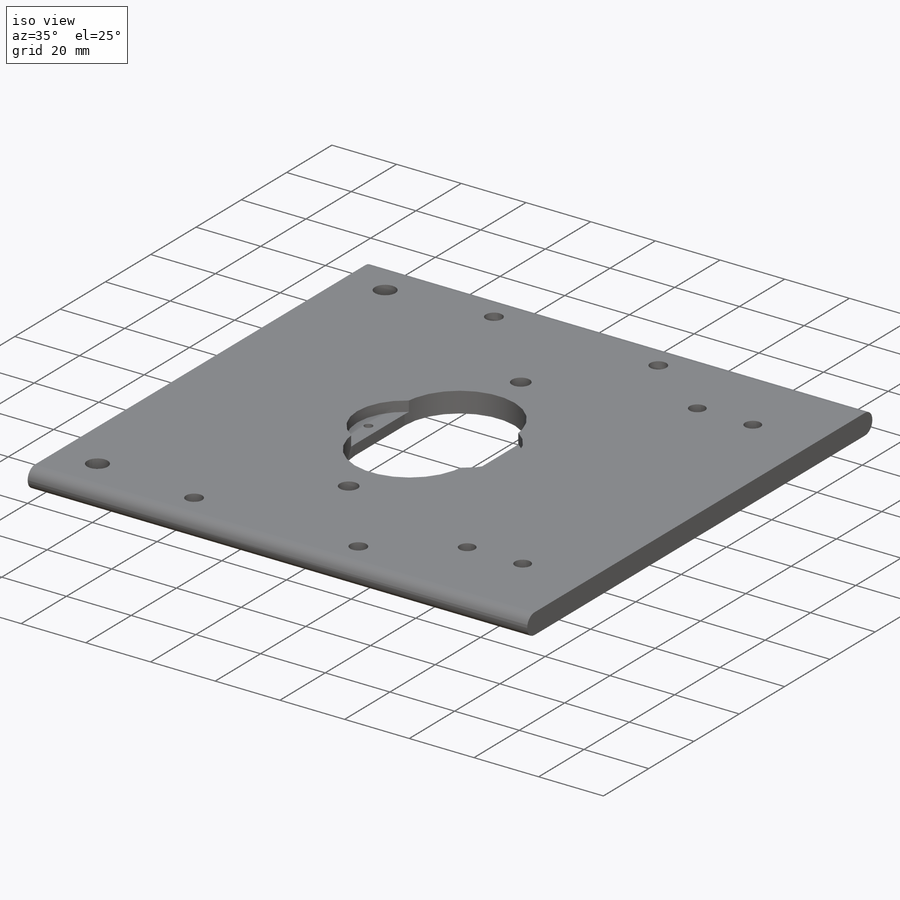
[diagram: iso view]
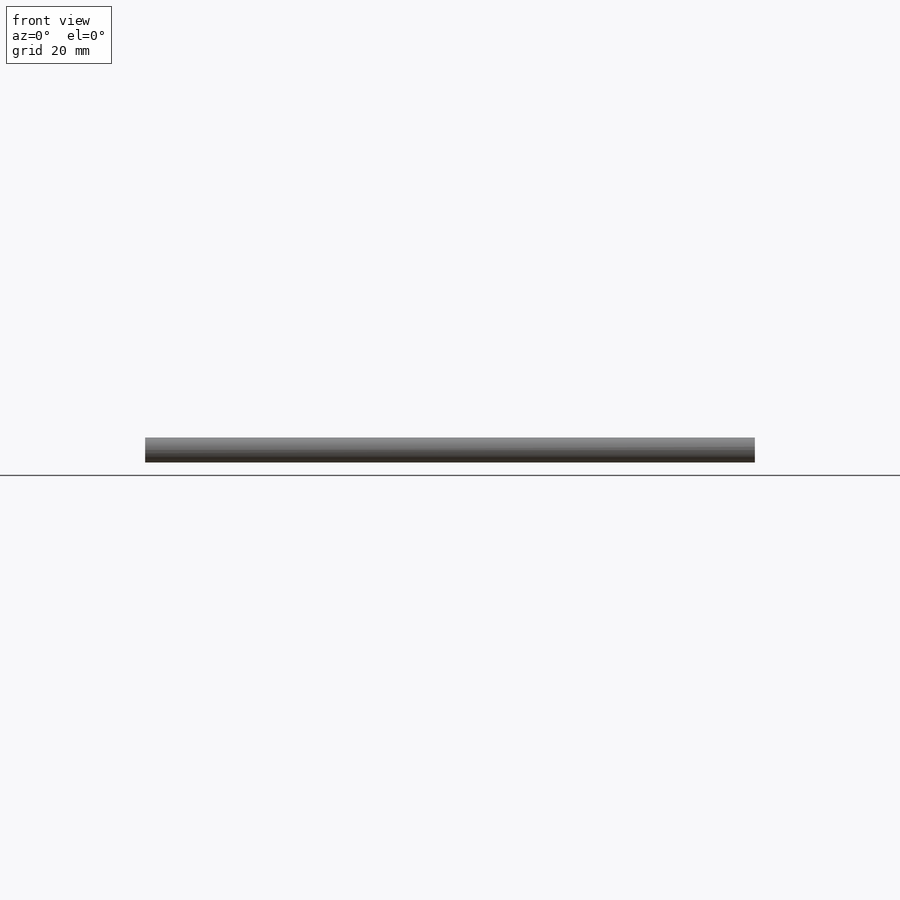
[diagram: front view]
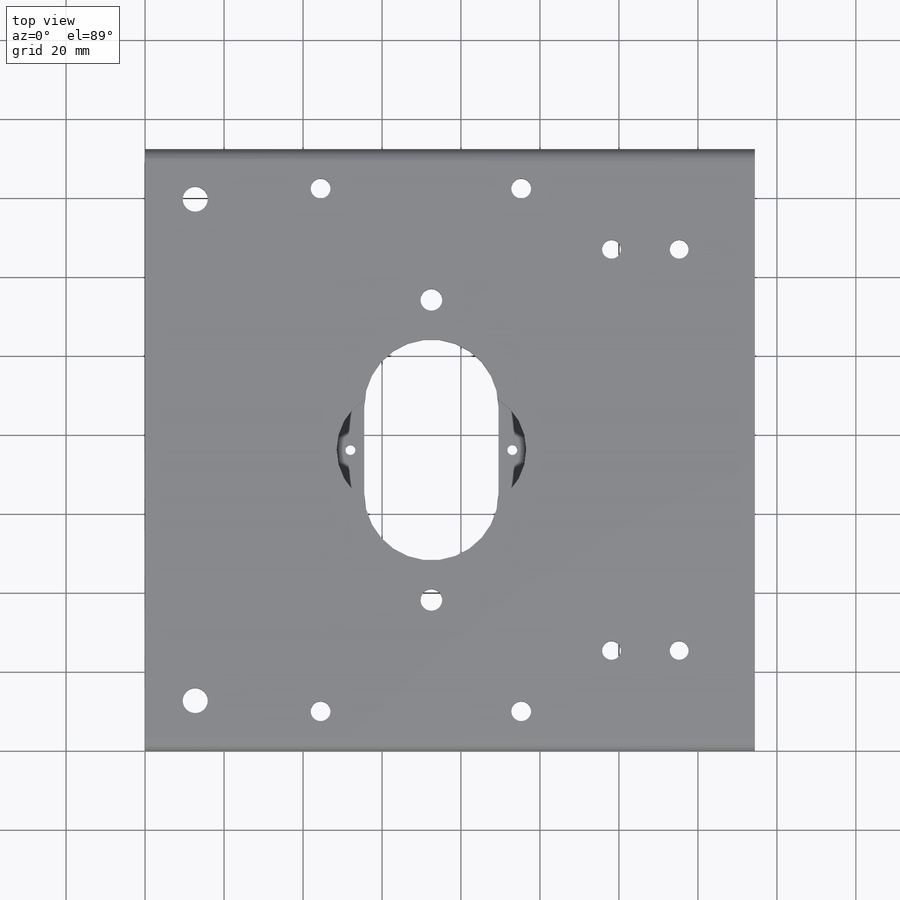
[diagram: top view]
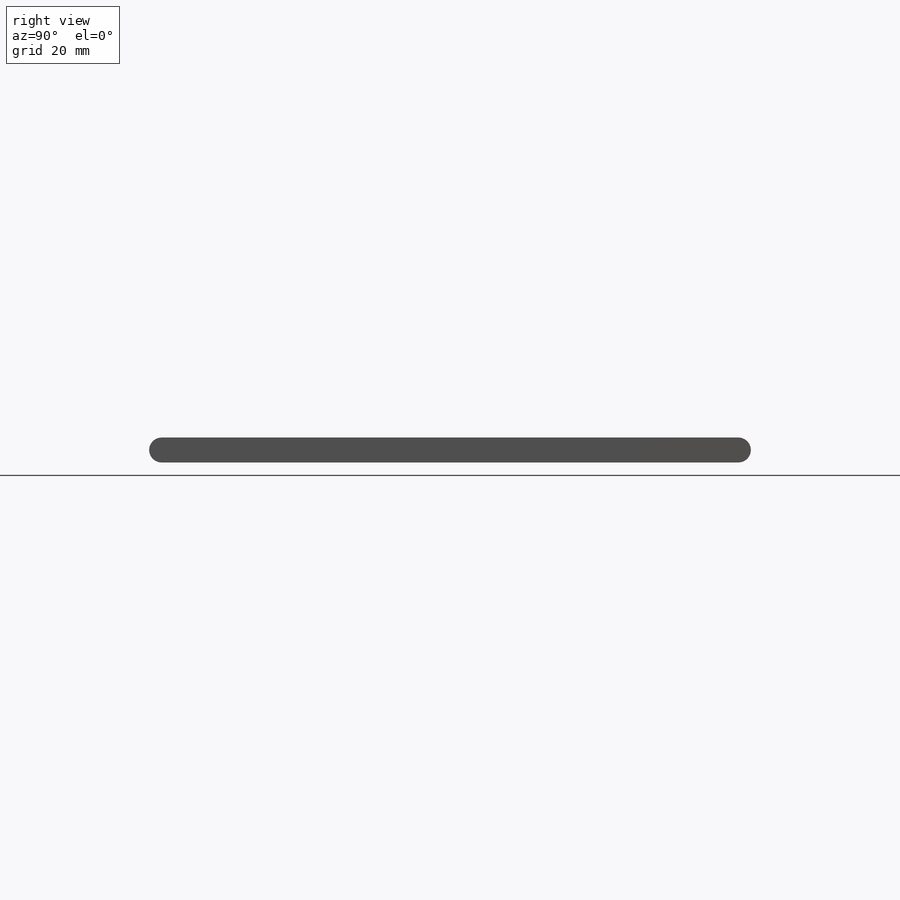
[diagram: right view]
SOLIDWORKS PART (.sldprt)
format: sldprt  version: not decoded by parser v0  size: 251,392 bytes
history: native  units: mm
features: sketch x4, cut_extrude x3, material x1, extrude x1, fillet x1 (+16 scaffold rows collapsed)
feature tree (26):
  scaffold x16  (default folders/planes/origin — collapsed)
  material  "Copper"
  sketch  "Sketch1"  dims[D3=6.35mm D8=29.0mm D9=4.7625mm D14=5.0165mm D1=154.432mm D2=152.4mm D4=12.7mm D5=12.7mm D6=12.7mm D7=72.5mm D10=118.11mm D11=135.255mm D12=25.4mm D13=25.4mm D15=44.45mm D16=95.25mm D17=10.0mm D18=10.0mm]
  extrude  "Boss-Extrude1"  Depth=6.35mm
  fillet  "Fillet2"  Radius=3.175mm
  sketch  "Sketch7"  dims[D1=34.0mm D2=11.0mm]
  sketch  "Sketch8"  dims[D1=15.0mm D2=9.0mm]
  sketch  "Sketch9"  dims[D1=5.5mm D2=2.5mm D3=38.0mm D4=20.5mm]
  cut_extrude  "Cut-Extrude4"  [1 undecoded]
  cut_extrude  "Cut-Extrude5"  [1 undecoded]
  cut_extrude  "Cut-Extrude6"  Depth=3.175mm
decode coverage: 7 of 9 modeling features carry decoded parameters
note: 2 parameter values undecoded
note: suppression state not decoded; provenance and decode notes live in map.json
